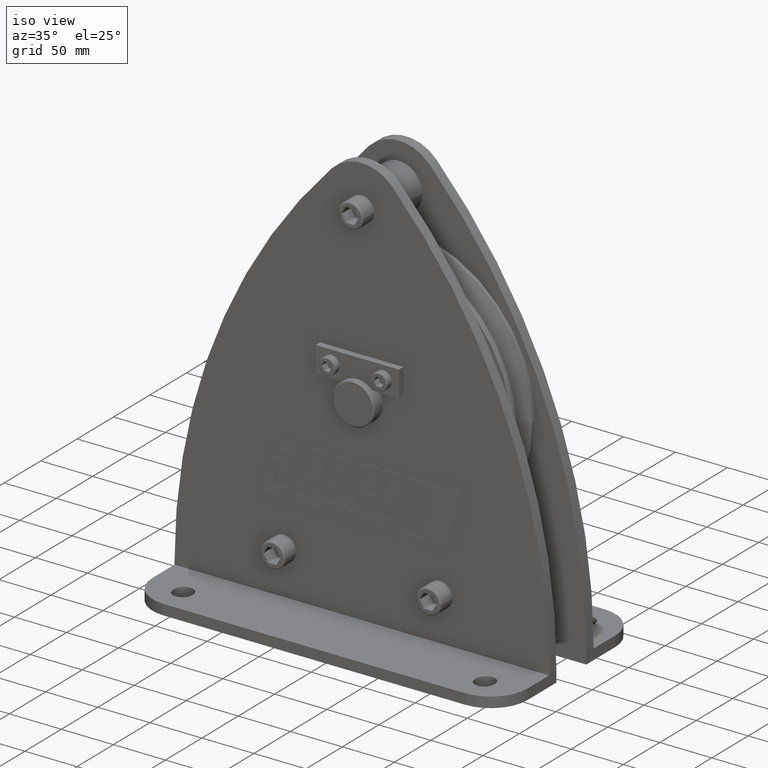
[diagram: clean part render]
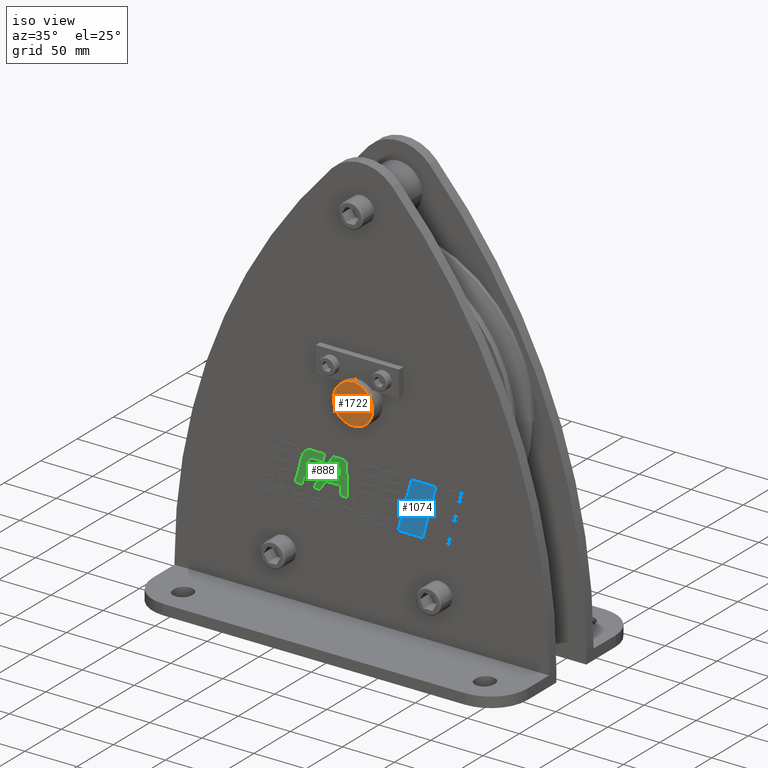
[diagram: same view with three faces highlighted in distinct colors, each labeled with its STEP entity id]
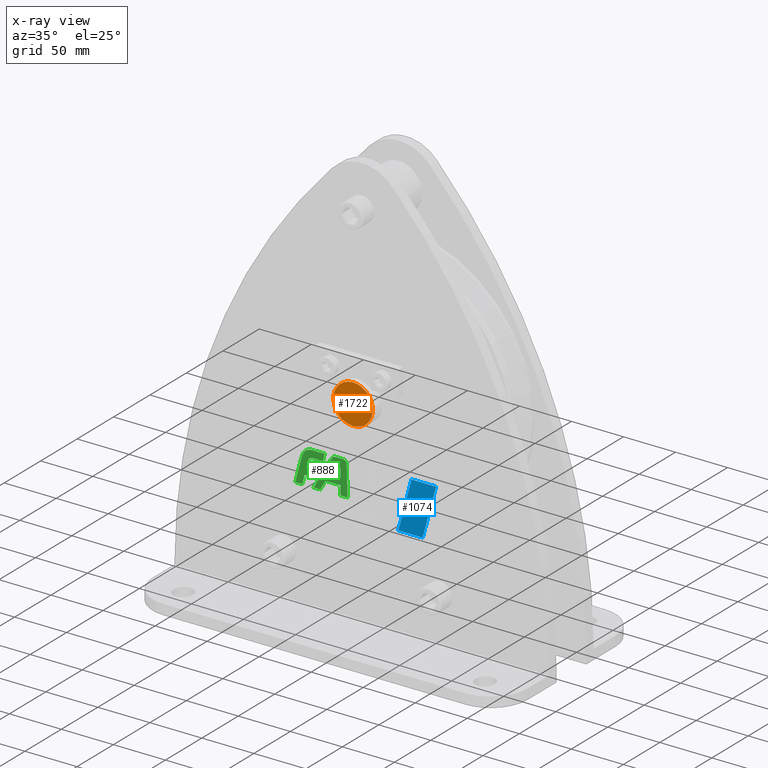
[diagram: x-ray of the same camera — body ghosted, the three highlighted faces saturated]
A machine part, iso view with three faces highlighted in distinct colors.
The next image is the same camera in x-ray (body ghosted, the three faces saturated) — at least one of them is partly hidden behind the body in this view.
Their STEP definitions:

[orange] entity #1722 — the highlighted planar face has unit normal (0, -1, 0).
#1722=ADVANCED_FACE('',(#3648),#3649,.T.);
#3648=FACE_OUTER_BOUND('',#5720,.T.);
#3649=PLANE('',#5721);
#5720=EDGE_LOOP('',(#11241,#11242));
#5721=AXIS2_PLACEMENT_3D('',#11243,#11244,#11245);
#11241=ORIENTED_EDGE('',*,*,#12515,.F.);
#11242=ORIENTED_EDGE('',*,*,#14393,.F.);
#11243=CARTESIAN_POINT('',(0.0,-42.5,-9.5));
#11244=DIRECTION('',(0.0,-1.0,0.0));
#11245=DIRECTION('',(0.0,0.0,1.0));
#12515=EDGE_CURVE('',#15094,#15096,#15097,.T.);
#14393=EDGE_CURVE('',#15096,#15094,#17879,.T.);
#15094=VERTEX_POINT('',#20258);
#15096=VERTEX_POINT('',#20261);
#15097=CIRCLE('',#20262,19.0);
#17879=CIRCLE('',#27473,19.0);
#20258=CARTESIAN_POINT('',(0.0,-42.5,-19.0));
#20261=CARTESIAN_POINT('',(-2.32682891837997E-015,-42.5,19.0));
#20262=AXIS2_PLACEMENT_3D('',#28428,#28429,#28430);
#27473=AXIS2_PLACEMENT_3D('',#30577,#30578,#30579);
#28428=CARTESIAN_POINT('',(0.0,-42.5,0.0));
#28429=DIRECTION('',(0.0,1.0,0.0));
#28430=DIRECTION('',(0.0,0.0,-1.0));
#30577=CARTESIAN_POINT('',(0.0,-42.5,0.0));
#30578=DIRECTION('',(0.0,1.0,0.0));
#30579=DIRECTION('',(0.0,0.0,-1.0));

[blue] entity #1074 — the highlighted planar face has unit normal (0, -1, 0).
#1074=ADVANCED_FACE('',(#2626),#2627,.T.);
#2626=FACE_OUTER_BOUND('',#4698,.T.);
#2627=PLANE('',#4699);
#4698=EDGE_LOOP('',(#8163,#8164,#8165,#8166));
#4699=AXIS2_PLACEMENT_3D('',#8167,#8168,#8169);
#8163=ORIENTED_EDGE('',*,*,#12945,.T.);
#8164=ORIENTED_EDGE('',*,*,#12957,.T.);
#8165=ORIENTED_EDGE('',*,*,#12953,.T.);
#8166=ORIENTED_EDGE('',*,*,#12949,.T.);
#8167=CARTESIAN_POINT('',(1.05537800720867E-012,-30.5,-43.4930480133687));
#8168=DIRECTION('',(0.0,-1.0,0.0));
#8169=DIRECTION('',(1.0,0.0,0.0));
#12945=EDGE_CURVE('',#15808,#15806,#15809,.T.);
#12949=EDGE_CURVE('',#15814,#15808,#15815,.T.);
#12953=EDGE_CURVE('',#15820,#15814,#15821,.T.);
#12957=EDGE_CURVE('',#15806,#15820,#15825,.T.);
#15806=VERTEX_POINT('',#23367);
#15808=VERTEX_POINT('',#23370);
#15809=LINE('',#23371,#23372);
#15814=VERTEX_POINT('',#23379);
#15815=LINE('',#23380,#23381);
#15820=VERTEX_POINT('',#23388);
#15821=LINE('',#23389,#23390);
#15825=LINE('',#23396,#23397);
#23367=CARTESIAN_POINT('',(71.3429207187478,-30.5,-57.1629090736707));
#23370=CARTESIAN_POINT('',(58.5690250746847,-30.5,-104.835736));
#23371=CARTESIAN_POINT('',(70.6621185630143,-30.5,-59.7036972753057));
#23372=VECTOR('',#29007,1.0);
#23379=CARTESIAN_POINT('',(35.0314213346578,-30.5,-104.835736));
#23380=CARTESIAN_POINT('',(29.2845125373429,-30.5,-104.835736));
#23381=VECTOR('',#29010,1.0);
#23388=CARTESIAN_POINT('',(47.8053169787208,-30.5,-57.1629090736705));
#23389=CARTESIAN_POINT('',(41.5259272595697,-30.5,-80.597910237407));
#23390=VECTOR('',#29013,1.0);
#23396=CARTESIAN_POINT('',(23.9026584893609,-30.5,-57.1629090736705));
#23397=VECTOR('',#29016,1.0);
#29007=DIRECTION('',(0.258819048283064,0.0,0.965925825436844));
#29010=DIRECTION('',(1.0,0.0,0.0));
#29013=DIRECTION('',(-0.258819048283062,-0.0,-0.965925825436845));
#29016=DIRECTION('',(-1.0,0.0,0.0));

[green] entity #888 — the highlighted planar face has unit normal (0, -1, 0).
#888=ADVANCED_FACE('',(#2326,#2327),#2328,.T.);
#2326=FACE_BOUND('',#4398,.T.);
#2327=FACE_OUTER_BOUND('',#4399,.T.);
#2328=PLANE('',#4400);
#4398=EDGE_LOOP('',(#7164,#7165,#7166,#7167,#7168,#7169,#7170));
#4399=EDGE_LOOP('',(#7171,#7172,#7173,#7174,#7175,#7176,#7177,#7178,#7179,#7180,#7181,#7182,#7183,#7184,#7185,#7186,#7187,#7188,#7189,#7190,#7191,#7192));
#4400=AXIS2_PLACEMENT_3D('',#7193,#7194,#7195);
#7164=ORIENTED_EDGE('',*,*,#12893,.T.);
#7165=ORIENTED_EDGE('',*,*,#12898,.T.);
#7166=ORIENTED_EDGE('',*,*,#12902,.T.);
#7167=ORIENTED_EDGE('',*,*,#12906,.T.);
#7168=ORIENTED_EDGE('',*,*,#12910,.T.);
#7169=ORIENTED_EDGE('',*,*,#12914,.T.);
#7170=ORIENTED_EDGE('',*,*,#12917,.T.);
#7171=ORIENTED_EDGE('',*,*,#12920,.T.);
#7172=ORIENTED_EDGE('',*,*,#12921,.T.);
#7173=ORIENTED_EDGE('',*,*,#12922,.T.);
#7174=ORIENTED_EDGE('',*,*,#12923,.T.);
#7175=ORIENTED_EDGE('',*,*,#12924,.T.);
#7176=ORIENTED_EDGE('',*,*,#12925,.T.);
#7177=ORIENTED_EDGE('',*,*,#12926,.T.);
#7178=ORIENTED_EDGE('',*,*,#12927,.T.);
#7179=ORIENTED_EDGE('',*,*,#12928,.T.);
#7180=ORIENTED_EDGE('',*,*,#12929,.T.);
#7181=ORIENTED_EDGE('',*,*,#12930,.T.);
#7182=ORIENTED_EDGE('',*,*,#12931,.T.);
#7183=ORIENTED_EDGE('',*,*,#12932,.T.);
#7184=ORIENTED_EDGE('',*,*,#12933,.T.);
#7185=ORIENTED_EDGE('',*,*,#12934,.T.);
#7186=ORIENTED_EDGE('',*,*,#12935,.T.);
#7187=ORIENTED_EDGE('',*,*,#12936,.T.);
#7188=ORIENTED_EDGE('',*,*,#12937,.T.);
#7189=ORIENTED_EDGE('',*,*,#12938,.T.);
#7190=ORIENTED_EDGE('',*,*,#12939,.T.);
#7191=ORIENTED_EDGE('',*,*,#12940,.T.);
#7192=ORIENTED_EDGE('',*,*,#12941,.T.);
#7193=CARTESIAN_POINT('',(1.05537800720867E-012,-30.5,-43.4930480133687));
#7194=DIRECTION('',(0.0,-1.0,0.0));
#7195=DIRECTION('',(1.0,0.0,0.0));
#12893=EDGE_CURVE('',#15720,#15718,#15721,.T.);
#12898=EDGE_CURVE('',#15718,#15726,#15728,.T.);
#12902=EDGE_CURVE('',#15726,#15732,#15734,.T.);
#12906=EDGE_CURVE('',#15732,#15738,#15740,.T.);
#12910=EDGE_CURVE('',#15738,#15744,#15746,.T.);
#12914=EDGE_CURVE('',#15744,#15750,#15752,.T.);
#12917=EDGE_CURVE('',#15750,#15720,#15755,.T.);
#12920=EDGE_CURVE('',#15758,#15759,#15760,.T.);
#12921=EDGE_CURVE('',#15759,#15761,#15762,.T.);
#12922=EDGE_CURVE('',#15761,#15763,#15764,.T.);
#12923=EDGE_CURVE('',#15763,#15765,#15766,.T.);
#12924=EDGE_CURVE('',#15765,#15767,#15768,.T.);
#12925=EDGE_CURVE('',#15767,#15769,#15770,.T.);
#12926=EDGE_CURVE('',#15769,#15771,#15772,.T.);
#12927=EDGE_CURVE('',#15771,#15773,#15774,.T.);
#12928=EDGE_CURVE('',#15773,#15775,#15776,.T.);
#12929=EDGE_CURVE('',#15775,#15777,#15778,.T.);
#12930=EDGE_CURVE('',#15777,#15779,#15780,.T.);
#12931=EDGE_CURVE('',#15779,#15781,#15782,.T.);
#12932=EDGE_CURVE('',#15781,#15783,#15784,.T.);
#12933=EDGE_CURVE('',#15783,#15785,#15786,.T.);
#12934=EDGE_CURVE('',#15785,#15787,#15788,.T.);
#12935=EDGE_CURVE('',#15787,#15789,#15790,.T.);
#12936=EDGE_CURVE('',#15789,#15791,#15792,.T.);
#12937=EDGE_CURVE('',#15791,#15793,#15794,.T.);
#12938=EDGE_CURVE('',#15793,#15795,#15796,.T.);
#12939=EDGE_CURVE('',#15795,#15797,#15798,.T.);
#12940=EDGE_CURVE('',#15797,#15799,#15800,.T.);
#12941=EDGE_CURVE('',#15799,#15758,#15801,.T.);
#15718=VERTEX_POINT('',#23247);
#15720=VERTEX_POINT('',#23250);
#15721=CIRCLE('',#23251,2.968436601);
#15726=VERTEX_POINT('',#23258);
#15728=LINE('',#23261,#23262);
#15732=VERTEX_POINT('',#23266);
#15734=CIRCLE('',#23269,0.056);
#15738=VERTEX_POINT('',#23274);
#15740=LINE('',#23277,#23278);
#15744=VERTEX_POINT('',#23282);
#15746=CIRCLE('',#23285,0.056);
#15750=VERTEX_POINT('',#23290);
#15752=LINE('',#23293,#23294);
#15755=CIRCLE('',#23297,2.968436601);
#15758=VERTEX_POINT('',#23300);
#15759=VERTEX_POINT('',#23301);
#15760=CIRCLE('',#23302,3.73277588666172);
#15761=VERTEX_POINT('',#23303);
#15762=LINE('',#23304,#23305);
#15763=VERTEX_POINT('',#23306);
#15764=CIRCLE('',#23307,3.732775917);
#15765=VERTEX_POINT('',#23308);
#15766=LINE('',#23309,#23310);
#15767=VERTEX_POINT('',#23311);
#15768=LINE('',#23312,#23313);
#15769=VERTEX_POINT('',#23314);
#15770=LINE('',#23315,#23316);
#15771=VERTEX_POINT('',#23317);
#15772=CIRCLE('',#23318,3.7932012186);
#15773=VERTEX_POINT('',#23319);
#15774=LINE('',#23320,#23321);
#15775=VERTEX_POINT('',#23322);
#15776=LINE('',#23323,#23324);
#15777=VERTEX_POINT('',#23325);
#15778=LINE('',#23326,#23327);
#15779=VERTEX_POINT('',#23328);
#15780=CIRCLE('',#23329,9.918510549);
#15781=VERTEX_POINT('',#23330);
#15782=LINE('',#23331,#23332);
#15783=VERTEX_POINT('',#23333);
#15784=LINE('',#23334,#23335);
#15785=VERTEX_POINT('',#23336);
#15786=LINE('',#23337,#23338);
#15787=VERTEX_POINT('',#23339);
#15788=LINE('',#23340,#23341);
#15789=VERTEX_POINT('',#23342);
#15790=LINE('',#23343,#23344);
#15791=VERTEX_POINT('',#23345);
#15792=LINE('',#23346,#23347);
#15793=VERTEX_POINT('',#23348);
#15794=LINE('',#23349,#23350);
#15795=VERTEX_POINT('',#23351);
#15796=LINE('',#23352,#23353);
#15797=VERTEX_POINT('',#23354);
#15798=LINE('',#23355,#23356);
#15799=VERTEX_POINT('',#23357);
#15800=LINE('',#23358,#23359);
#15801=LINE('',#23360,#23361);
#23247=CARTESIAN_POINT('',(-20.482363013948,-30.5,-67.0814196226911));
#23250=CARTESIAN_POINT('',(-23.4418159959375,-30.5,-64.1129971439468));
#23251=AXIS2_PLACEMENT_3D('',#28942,#28943,#28944);
#23258=CARTESIAN_POINT('',(-20.482363013948,-30.5,-73.5988748338482));
#23261=CARTESIAN_POINT('',(-20.482363013948,-30.5,-55.2872338180299));
#23262=VECTOR('',#28948,1.0);
#23266=CARTESIAN_POINT('',(-20.538363013948,-30.5,-73.6548748338482));
#23269=AXIS2_PLACEMENT_3D('',#28953,#28954,#28955);
#23274=CARTESIAN_POINT('',(-30.5964810240869,-30.5,-73.6548748338482));
#23277=CARTESIAN_POINT('',(-10.2691815069735,-30.5,-73.6548748338482));
#23278=VECTOR('',#28958,1.0);
#23282=CARTESIAN_POINT('',(-30.6448788213068,-30.5,-73.5707029822182));
#23285=AXIS2_PLACEMENT_3D('',#28963,#28964,#28965);
#23290=CARTESIAN_POINT('',(-25.9982843326739,-30.5,-65.5880918007529));
#23293=CARTESIAN_POINT('',(-20.2285916947525,-30.5,-55.6760555604999));
#23294=VECTOR('',#28968,1.0);
#23297=AXIS2_PLACEMENT_3D('',#28972,#28973,#28974);
#23300=CARTESIAN_POINT('',(-14.4208940526642,-30.5,-60.7843084361876));
#23301=CARTESIAN_POINT('',(-18.1520079729303,-30.5,-57.1629090912202));
#23302=AXIS2_PLACEMENT_3D('',#28975,#28976,#28977);
#23303=CARTESIAN_POINT('',(-25.5320870312578,-30.5,-57.1629090912202));
#23304=CARTESIAN_POINT('',(-12.7660435156284,-30.5,-57.1629090912202));
#23305=VECTOR('',#28978,1.0);
#23306=CARTESIAN_POINT('',(-28.7581251011482,-30.5,-59.0178419854536));
#23307=AXIS2_PLACEMENT_3D('',#28979,#28980,#28981);
#23308=CARTESIAN_POINT('',(-37.2801253888532,-30.5,-73.6582014430654));
#23309=CARTESIAN_POINT('',(-26.005198872945,-30.5,-54.2884559046612));
#23310=VECTOR('',#28982,1.0);
#23311=CARTESIAN_POINT('',(-52.9702312195235,-30.5,-73.6582014430654));
#23312=CARTESIAN_POINT('',(-26.4851156097612,-30.5,-73.6582014430654));
#23313=VECTOR('',#28983,1.0);
#23314=CARTESIAN_POINT('',(-51.165923024384,-30.5,-66.9244314943136));
#23315=CARTESIAN_POINT('',(-46.5232666982961,-30.5,-49.5978019666043));
#23316=VECTOR('',#28984,1.0);
#23317=CARTESIAN_POINT('',(-47.5019720117577,-30.5,-64.1129830255764));
#23318=AXIS2_PLACEMENT_3D('',#28985,#28986,#28987);
#23319=CARTESIAN_POINT('',(-37.3976476606581,-30.5,-64.1129830255764));
#23320=CARTESIAN_POINT('',(-18.6988238303285,-30.5,-64.1129830255764));
#23321=VECTOR('',#28988,1.0);
#23322=CARTESIAN_POINT('',(-35.5353809835736,-30.5,-57.1629090775762));
#23323=CARTESIAN_POINT('',(-32.636438819811,-30.5,-46.3439094911853));
#23324=VECTOR('',#28989,1.0);
#23325=CARTESIAN_POINT('',(-47.80752255964,-30.5,-57.162909077576));
#23326=CARTESIAN_POINT('',(-23.9037612798195,-30.5,-57.162909077576));
#23327=VECTOR('',#28990,1.0);
#23328=CARTESIAN_POINT('',(-57.3880680387244,-30.5,-64.5143201283445));
#23329=AXIS2_PLACEMENT_3D('',#28991,#28992,#28993);
#23330=CARTESIAN_POINT('',(-64.0485024119859,-30.5,-89.37139943567));
#23331=CARTESIAN_POINT('',(-56.1684903591378,-30.5,-59.9627942962412));
#23332=VECTOR('',#28994,1.0);
#23333=CARTESIAN_POINT('',(-57.1805700340241,-30.5,-89.37139943567));
#23334=CARTESIAN_POINT('',(-28.5902850170115,-30.5,-89.37139943567));
#23335=VECTOR('',#28995,1.0);
#23336=CARTESIAN_POINT('',(-54.8324979521102,-30.5,-80.6082753736705));
#23337=CARTESIAN_POINT('',(-48.3565538786164,-30.5,-56.4397237471211));
#23338=VECTOR('',#28996,1.0);
#23339=CARTESIAN_POINT('',(-41.3256909154809,-30.5,-80.6082753736705));
#23340=CARTESIAN_POINT('',(-20.6628454577399,-30.5,-80.6082753736705));
#23341=VECTOR('',#28997,1.0);
#23342=CARTESIAN_POINT('',(-46.4266138830984,-30.5,-89.37139943567));
#23343=CARTESIAN_POINT('',(-30.5784431525332,-30.5,-62.1450548801163));
#23344=VECTOR('',#28998,1.0);
#23345=CARTESIAN_POINT('',(-39.8422991980759,-30.5,-89.37139943567));
#23346=CARTESIAN_POINT('',(-19.9211495990374,-30.5,-89.37139943567));
#23347=VECTOR('',#28999,1.0);
#23348=CARTESIAN_POINT('',(-34.7413762304583,-30.5,-80.6082753736705));
#23349=CARTESIAN_POINT('',(-22.2768402494229,-30.5,-59.1948417910648));
#23350=VECTOR('',#29000,1.0);
#23351=CARTESIAN_POINT('',(-20.4823492886712,-30.5,-80.6082753736703));
#23352=CARTESIAN_POINT('',(-10.2411746443351,-30.5,-80.6082753736703));
#23353=VECTOR('',#29001,1.0);
#23354=CARTESIAN_POINT('',(-20.4823492886712,-30.5,-89.371399422881));
#23355=CARTESIAN_POINT('',(-20.4823492886712,-30.5,-66.4322237181248));
#23356=VECTOR('',#29002,1.0);
#23357=CARTESIAN_POINT('',(-13.5675480012595,-30.5,-89.3713994228813));
#23358=CARTESIAN_POINT('',(-6.78377400062923,-30.5,-89.3713994228813));
#23359=VECTOR('',#29003,1.0);
#23360=CARTESIAN_POINT('',(-14.6723235489755,-30.5,-52.3614208210651));
#23361=VECTOR('',#29004,1.0);
#28942=CARTESIAN_POINT('',(-23.450799614948,-30.5,-67.0814196226911));
#28943=DIRECTION('',(0.0,1.0,-0.0));
#28944=DIRECTION('',(-1.0,0.0,0.0));
#28948=DIRECTION('',(0.0,0.0,-1.0));
#28953=CARTESIAN_POINT('',(-20.538363013948,-30.5,-73.5988748338482));
#28954=DIRECTION('',(-0.0,1.0,0.0));
#28955=DIRECTION('',(0.0,0.0,1.0));
#28958=DIRECTION('',(-1.0,-0.0,-0.0));
#28963=CARTESIAN_POINT('',(-30.5964810240869,-30.5,-73.5988748338482));
#28964=DIRECTION('',(-0.0,1.0,0.0));
#28965=DIRECTION('',(0.864246378926872,0.0,-0.503068779106585));
#28968=DIRECTION('',(0.503068779106605,0.0,0.86424637892686));
#28972=CARTESIAN_POINT('',(-23.4328237603198,-30.5,-67.0814195966012));
#28973=DIRECTION('',(-0.0,1.0,0.0));
#28974=DIRECTION('',(0.003087502165646,0.0,-0.999995233653829));
#28975=CARTESIAN_POINT('',(-18.1520079729303,-30.5,-60.8956849778819));
#28976=DIRECTION('',(0.0,-1.0,-0.0));
#28977=DIRECTION('',(-0.999554763948843,0.0,-0.02983745745153));
#28978=DIRECTION('',(-1.0,0.0,0.0));
#28979=CARTESIAN_POINT('',(-25.5320870312578,-30.5,-60.8956850082202));
#28980=DIRECTION('',(0.0,-1.0,0.0));
#28981=DIRECTION('',(0.0,0.0,-1.0));
#28982=DIRECTION('',(-0.503068785832823,-0.0,-0.864246375011599));
#28983=DIRECTION('',(-1.0,0.0,0.0));
#28984=DIRECTION('',(0.258819041804069,0.0,0.965925827172886));
#28985=CARTESIAN_POINT('',(-47.5019720117577,-30.5,-67.9061842441764));
#28986=DIRECTION('',(-0.0,1.0,0.0));
#28987=DIRECTION('',(0.0,0.0,1.0));
#28988=DIRECTION('',(1.0,0.0,0.0));
#28989=DIRECTION('',(0.258819041910183,0.0,0.965925827144453));
#28990=DIRECTION('',(-1.0,0.0,0.0));
#28991=CARTESIAN_POINT('',(-47.80752255964,-30.5,-67.081419626576));
#28992=DIRECTION('',(0.0,-1.0,0.0));
#28993=DIRECTION('',(0.0,0.0,-1.0));
#28994=DIRECTION('',(-0.258819046794494,-0.0,-0.965925825835705));
#28995=DIRECTION('',(1.0,0.0,0.0));
#28996=DIRECTION('',(0.258819051923796,0.0,0.965925824461313));
#28997=DIRECTION('',(1.0,0.0,0.0));
#28998=DIRECTION('',(-0.503068786003664,-0.0,-0.864246374912154));
#28999=DIRECTION('',(1.0,0.0,0.0));
#29000=DIRECTION('',(0.503068786003677,0.0,0.864246374912147));
#29001=DIRECTION('',(1.0,0.0,0.0));
#29002=DIRECTION('',(-0.0,-0.0,-1.0));
#29003=DIRECTION('',(1.0,0.0,0.0));
#29004=DIRECTION('',(-0.029837457451531,0.0,0.999554763948843));